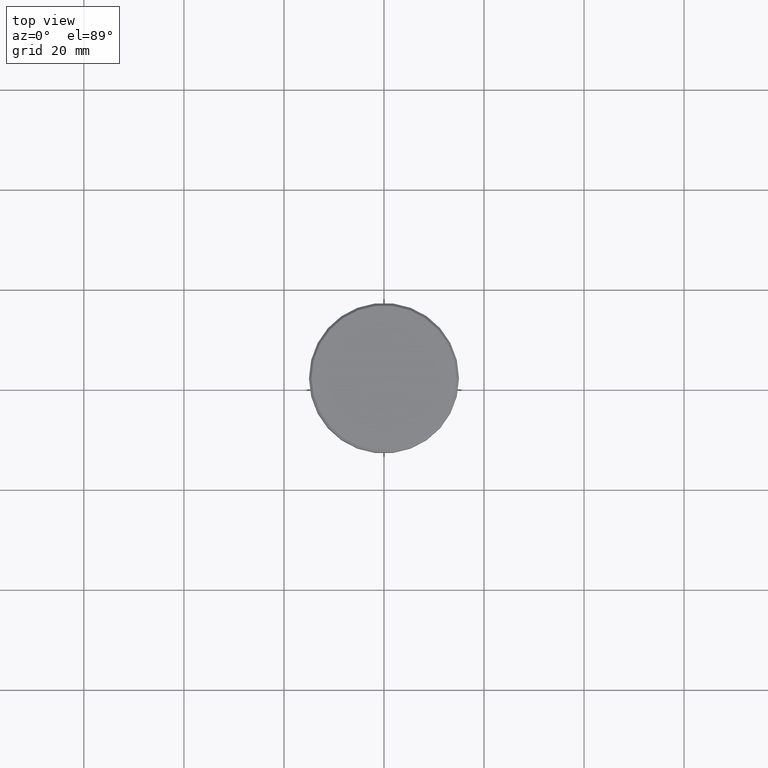
[diagram: clean part render]
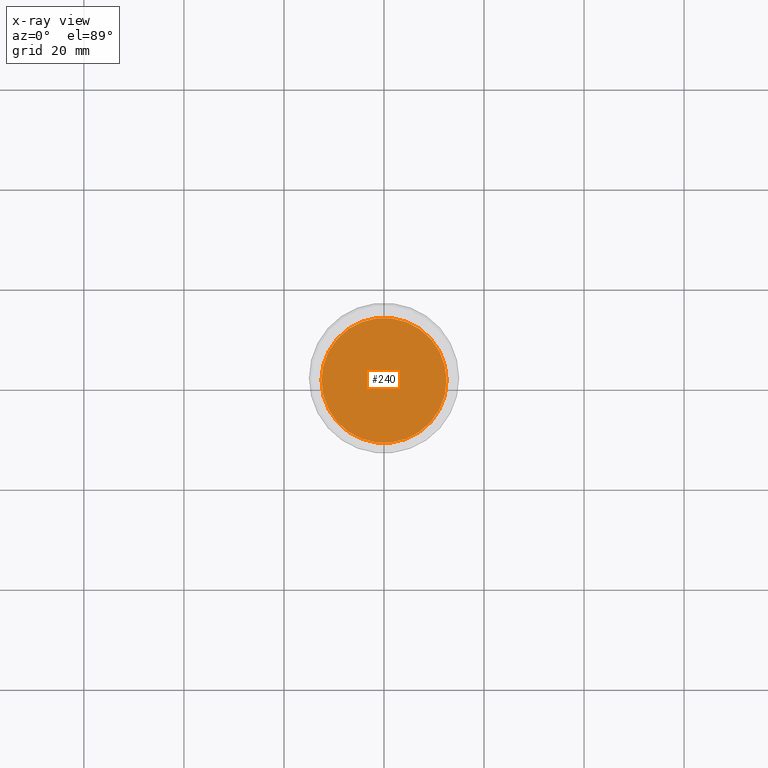
[diagram: x-ray — body ghosted, one internal face saturated and labeled with its STEP entity id]
A machine part, top view, then the same camera in x-ray: the body is ghosted and one INTERNAL B-rep face — a face not visible from any outside direction — is saturated and labeled: STEP entity #240.
In plain terms, the highlighted planar face has unit normal (0, 0, -1).
Its self-contained STEP definition (entity closure, byte-faithful):
#30 = VERTEX_POINT ( 'NONE', #226 ) ;
#59 = CARTESIAN_POINT ( 'NONE',  ( -12.50000000000000000, 1.530808498934191521E-15, -30.00000000000000000 ) ) ;
#95 = AXIS2_PLACEMENT_3D ( 'NONE', #157, #640, #1044 ) ;
#157 = CARTESIAN_POINT ( 'NONE',  ( 0.000000000000000000, 0.000000000000000000, -30.00000000000000000 ) ) ;
#226 = CARTESIAN_POINT ( 'NONE',  ( 12.50000000000000000, 0.000000000000000000, -30.00000000000000000 ) ) ;
#228 = ORIENTED_EDGE ( 'NONE', *, *, #350, .T. ) ;
#240 = ADVANCED_FACE ( 'NONE', ( #430 ), #757, .F. ) ;
#292 = DIRECTION ( 'NONE',  ( 1.000000000000000000, 0.000000000000000000, 0.000000000000000000 ) ) ;
#335 = DIRECTION ( 'NONE',  ( -1.000000000000000000, 0.000000000000000000, -0.000000000000000000 ) ) ;
#347 = CARTESIAN_POINT ( 'NONE',  ( 0.000000000000000000, -1.734723475976807094E-15, -30.00000000000000000 ) ) ;
#350 = EDGE_CURVE ( 'NONE', #30, #415, #594, .T. ) ;
#415 = VERTEX_POINT ( 'NONE', #59 ) ;
#430 = FACE_OUTER_BOUND ( 'NONE', #540, .T. ) ;
#540 = EDGE_LOOP ( 'NONE', ( #228, #941 ) ) ;
#573 = CIRCLE ( 'NONE', #95, 12.50000000000000000 ) ;
#579 = CARTESIAN_POINT ( 'NONE',  ( 0.000000000000000000, 0.000000000000000000, -30.00000000000000000 ) ) ;
#594 = CIRCLE ( 'NONE', #748, 12.50000000000000000 ) ;
#640 = DIRECTION ( 'NONE',  ( -0.000000000000000000, -0.000000000000000000, 1.000000000000000000 ) ) ;
#748 = AXIS2_PLACEMENT_3D ( 'NONE', #579, #918, #292 ) ;
#750 = DIRECTION ( 'NONE',  ( 0.000000000000000000, 0.000000000000000000, -1.000000000000000000 ) ) ;
#757 = PLANE ( 'NONE',  #1016 ) ;
#890 = EDGE_CURVE ( 'NONE', #415, #30, #573, .T. ) ;
#918 = DIRECTION ( 'NONE',  ( -0.000000000000000000, -0.000000000000000000, 1.000000000000000000 ) ) ;
#941 = ORIENTED_EDGE ( 'NONE', *, *, #890, .T. ) ;
#1016 = AXIS2_PLACEMENT_3D ( 'NONE', #347, #750, #335 ) ;
#1044 = DIRECTION ( 'NONE',  ( 1.000000000000000000, 0.000000000000000000, 0.000000000000000000 ) ) ;